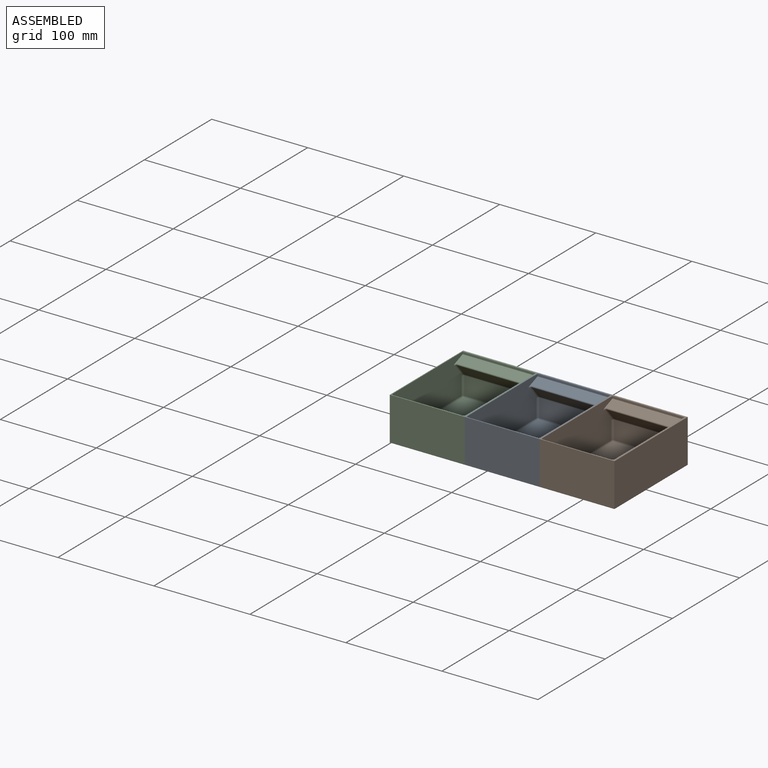
[diagram: assembled view]
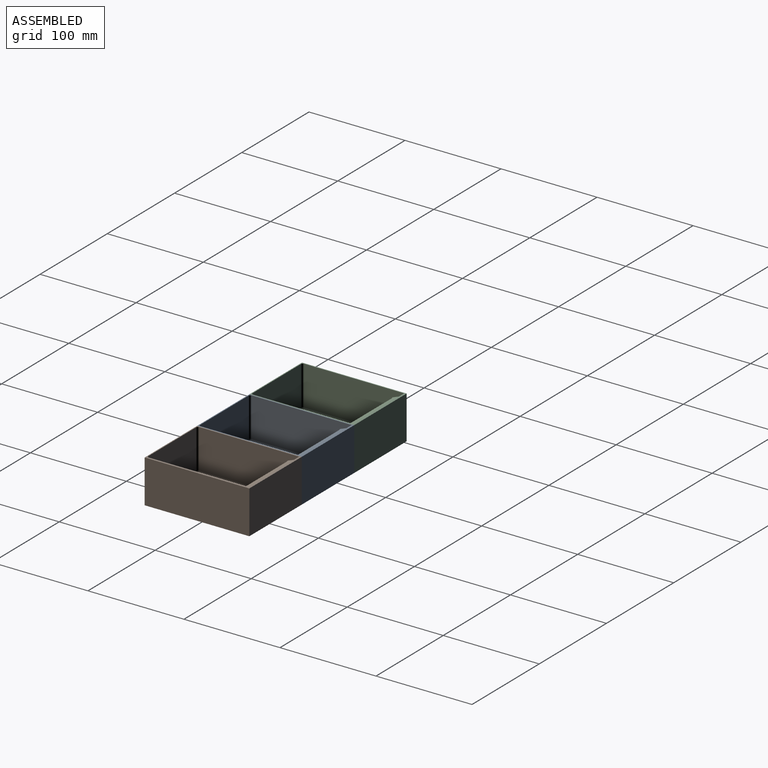
[diagram: assembled view, second angle]
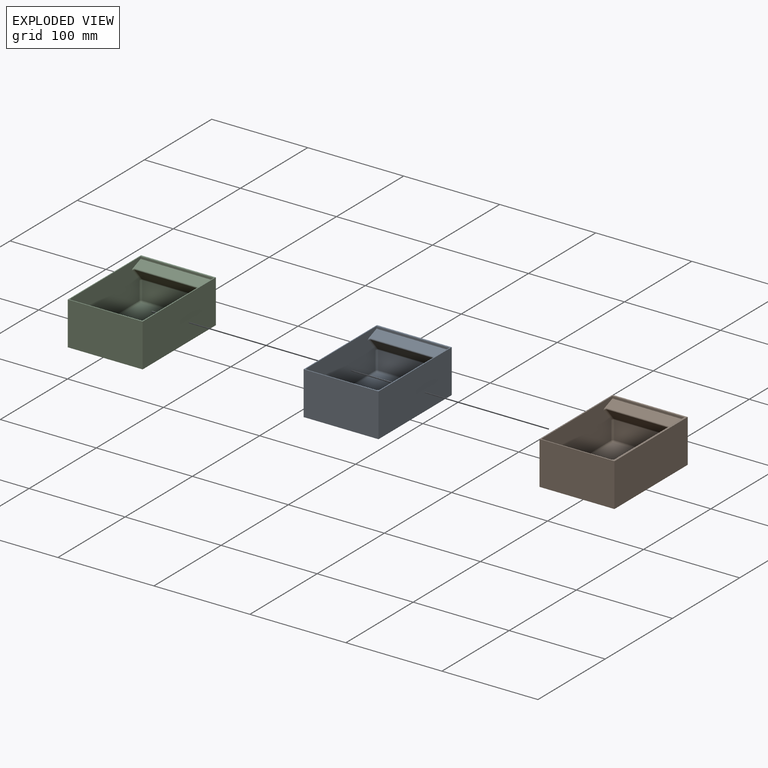
[diagram: exploded view]
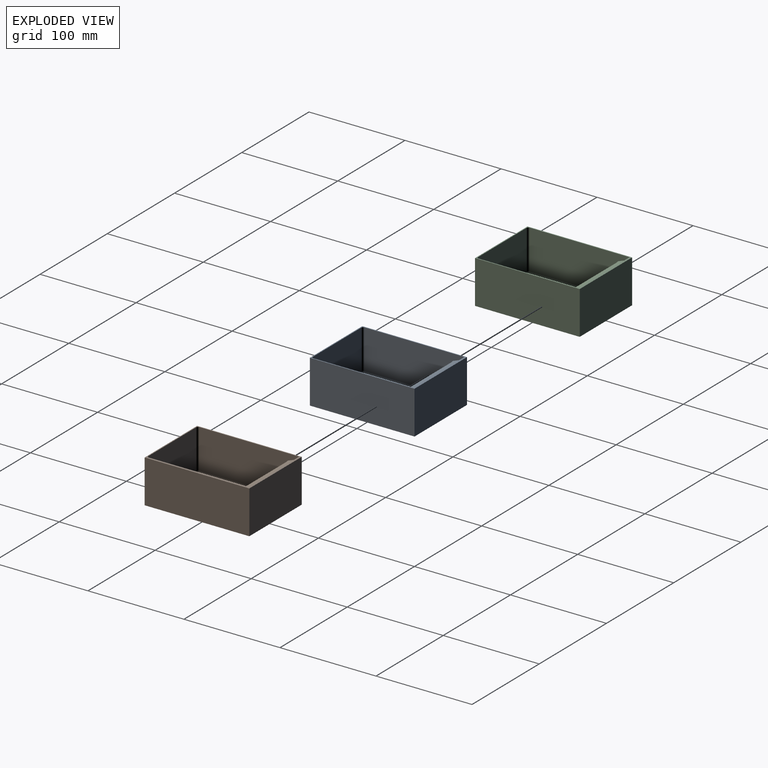
[diagram: exploded view, second angle]
ASSEMBLY  parts=3 mates=2
PART A: 34 faces, bbox 78.3x109.3x45.3 mm
  f0: plane 72x18.88mm, normal (0,-1,0), area 1359.3mm2, adj f20,f24,f27,f30
  f1: plane 109x78mm, normal (0,0,1), area 447.7mm2, adj f2,f3,f4,f5,f7,f8,f9,f10
  f2: plane 109x45mm, normal (1,0,0), area 4905mm2, adj f1,f3,f5,f6
  f3: plane 78x45mm, normal (0,1,0), area 3510mm2, adj f1,f2,f4,f6
  f4: plane 109x45mm, normal (-1,0,0), area 4905mm2, adj f1,f3,f5,f6
  f5: plane 78x45mm, normal (0,-1,0), area 3510mm2, adj f1,f2,f4,f6
  f6: plane 109x78mm, normal (0,0,-1), area 8502mm2, adj f2,f3,f4,f5
  f7: plane 104.26x41.26mm, normal (-1,0,0), area 4074.2mm2, adj f1,f8,f13,f17,f25,f26,f30,f33
  f8: plane 76x2.38mm, normal (0,-1,0), area 181.1mm2, adj f1,f7,f9,f13
  f9: plane 104.26x41.26mm, normal (1,0,0), area 4074.2mm2, adj f1,f8,f13,f14,f16,f19,f20,f31
  f10: plane 72x41mm, normal (0,1,0), area 2952mm2, adj f1,f14,f17,f18
  f11: plane 102x72mm, normal (0,0,1), area 7344mm2, adj f18,f19,f26,f27
  f12: plane 72x12.76mm, normal (0,-0.77,-0.64), area 1199.2mm2, adj f16,f24,f25,f32
  f13: plane 76x11.52mm, normal (0,-0.36,0.93), area 877mm2, adj f7,f8,f9,f31,f32,f33
  f14: cylinder r=2mm len=41mm, axis (0,0,-1), area 128.8mm2, adj f1,f9,f10,f15
  f15: sphere r=2mm, area 6.3mm2, adj f14,f18,f19
  f16: cylinder r=2mm len=14.84mm, axis (0,0.64,-0.77), area 54mm2, adj f9,f12,f21,f31
  f17: cylinder r=2mm len=41mm, axis (0,0,1), area 128.8mm2, adj f1,f7,f10,f22
  f18: cylinder r=2mm len=72mm, axis (-1,0,0), area 226.2mm2, adj f10,f11,f15,f22
  f19: cylinder r=2mm len=102mm, axis (0,1,0), area 320.4mm2, adj f9,f11,f15,f23
  f20: cylinder r=2mm len=18.88mm, axis (0,0,1), area 59.3mm2, adj f0,f9,f21,f23
  f21: sphere r=2mm, area 2.1mm2, adj f16,f20,f24
  f22: sphere r=2mm, area 5.6mm2, adj f17,f18,f26
  f23: sphere r=2mm, area 8.6mm2, adj f19,f20,f27
  f24: cylinder r=2mm len=72mm, axis (-1,0,0), area 100.5mm2, adj f0,f12,f21,f28
  f25: cylinder r=2mm len=14.84mm, axis (0,-0.64,0.77), area 54mm2, adj f7,f12,f28,f33
  f26: cylinder r=2mm len=102mm, axis (0,-1,0), area 320.4mm2, adj f7,f11,f22,f29
  f27: cylinder r=2mm len=72mm, axis (1,0,0), area 226.2mm2, adj f0,f11,f23,f29
  f28: sphere r=2mm, area 2.1mm2, adj f24,f25,f30
  f29: sphere r=2mm, area 4mm2, adj f26,f27,f30
  f30: cylinder r=2mm len=18.88mm, axis (0,0,-1), area 59.3mm2, adj f0,f7,f28,f29
  f31: bspline ~3x2.97mm, area 4.8mm2, adj f9,f13,f16,f32
  f32: cylinder r=1mm len=72mm, axis (-1,0,0), area 137.1mm2, adj f12,f13,f31,f33
  f33: bspline ~3x2.97mm, area 4.8mm2, adj f7,f13,f25,f32
PART B: 34 faces, bbox 78.3x109.3x45.3 mm
  f0: plane 71x18.88mm, normal (0,-1,0), area 1340.5mm2, adj f20,f24,f27,f30
  f1: plane 109x78mm, normal (0,0,1), area 553.7mm2, adj f2,f3,f4,f5,f7,f8,f9,f10
  f2: plane 109x45mm, normal (1,0,0), area 4905mm2, adj f1,f3,f5,f6
  f3: plane 78x45mm, normal (0,1,0), area 3510mm2, adj f1,f2,f4,f6
  f4: plane 109x45mm, normal (-1,0,0), area 4905mm2, adj f1,f3,f5,f6
  f5: plane 78x45mm, normal (0,-1,0), area 3510mm2, adj f1,f2,f4,f6
  f6: plane 109x78mm, normal (0,0,-1), area 8502mm2, adj f2,f3,f4,f5
  f7: plane 104.33x41.33mm, normal (-1,0,0), area 4073.8mm2, adj f1,f8,f13,f17,f25,f26,f30,f33
  f8: plane 75x2.38mm, normal (0,-1,0), area 178.7mm2, adj f1,f7,f9,f13
  f9: plane 104.26x41.26mm, normal (1,0,0), area 4074.2mm2, adj f1,f8,f13,f14,f16,f19,f20,f31
  f10: plane 71x41mm, normal (0,1,0), area 2911mm2, adj f1,f14,f17,f18
  f11: plane 102x71mm, normal (0,0,1), area 7242mm2, adj f18,f19,f26,f27
  f12: plane 71x12.76mm, normal (0,-0.77,-0.64), area 1182.6mm2, adj f16,f24,f25,f32
  f13: plane 75x11.52mm, normal (0,-0.36,0.93), area 865.4mm2, adj f7,f8,f9,f31,f32,f33
  f14: cylinder r=2mm len=41mm, axis (0,0,-1), area 128.8mm2, adj f1,f9,f10,f15
  f15: sphere r=2mm, area 6.3mm2, adj f14,f18,f19
  f16: cylinder r=2mm len=14.84mm, axis (0,0.64,-0.77), area 54mm2, adj f9,f12,f21,f31
  f17: cylinder r=2mm len=41mm, axis (0,0,1), area 128.8mm2, adj f1,f7,f10,f22
  f18: cylinder r=2mm len=71mm, axis (-1,0,0), area 223.1mm2, adj f10,f11,f15,f22
  f19: cylinder r=2mm len=102mm, axis (0,1,0), area 320.4mm2, adj f9,f11,f15,f23
  f20: cylinder r=2mm len=18.88mm, axis (0,0,1), area 59.3mm2, adj f0,f9,f21,f23
  f21: sphere r=2mm, area 2.1mm2, adj f16,f20,f24
  f22: sphere r=2mm, area 6.3mm2, adj f17,f18,f26
  f23: sphere r=2mm, area 8.6mm2, adj f19,f20,f27
  f24: cylinder r=2mm len=71mm, axis (-1,0,0), area 99.1mm2, adj f0,f12,f21,f28
  f25: cylinder r=2mm len=14.84mm, axis (0,-0.64,0.77), area 54mm2, adj f7,f12,f28,f33
  f26: cylinder r=2mm len=102mm, axis (0,-1,0), area 320.4mm2, adj f7,f11,f22,f29
  f27: cylinder r=2mm len=71mm, axis (1,0,0), area 223.1mm2, adj f0,f11,f23,f29
  f28: sphere r=2mm, area 2.1mm2, adj f24,f25,f30
  f29: sphere r=2mm, area 4mm2, adj f26,f27,f30
  f30: cylinder r=2mm len=18.88mm, axis (0,0,-1), area 59.3mm2, adj f0,f7,f28,f29
  f31: bspline ~3x2.97mm, area 4.8mm2, adj f9,f13,f16,f32
  f32: cylinder r=1mm len=71mm, axis (-1,0,0), area 135.2mm2, adj f12,f13,f31,f33
  f33: bspline ~3x2.97mm, area 4.8mm2, adj f7,f13,f25,f32
PART C: same geometry as A
PLACE A t=(120.75,0,0)mm
PLACE B t=(198.75,0,0)mm
PLACE C t=(42.75,0,0)mm
MATE fastened C.f2 <-> A.f4  axis (1,0,0) through (81.75,0,22.5)mm
MATE fastened A.f2 <-> B.f4  axis (1,0,0) through (159.75,0,22.5)mm
